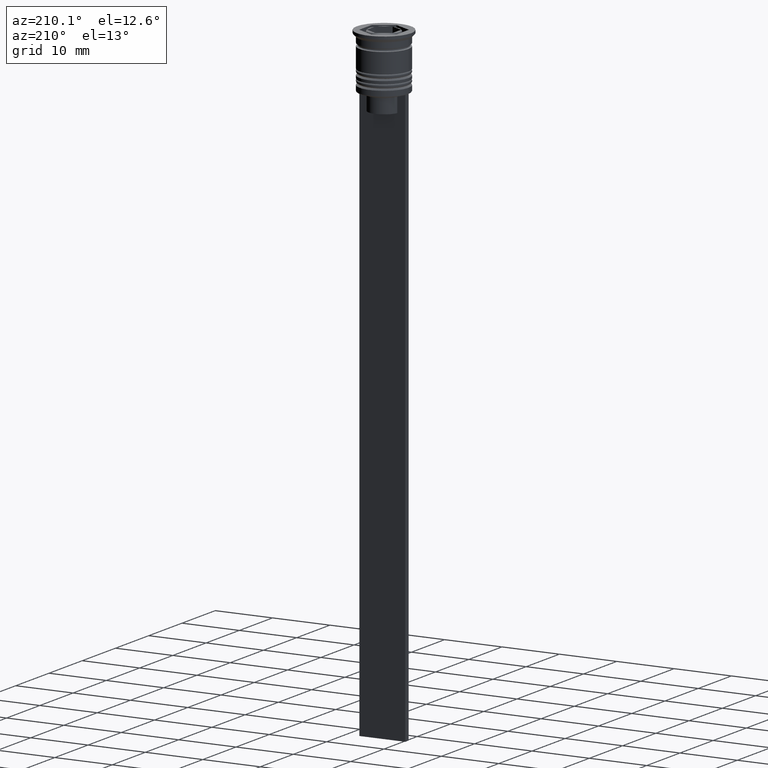
[diagram: clean part render]
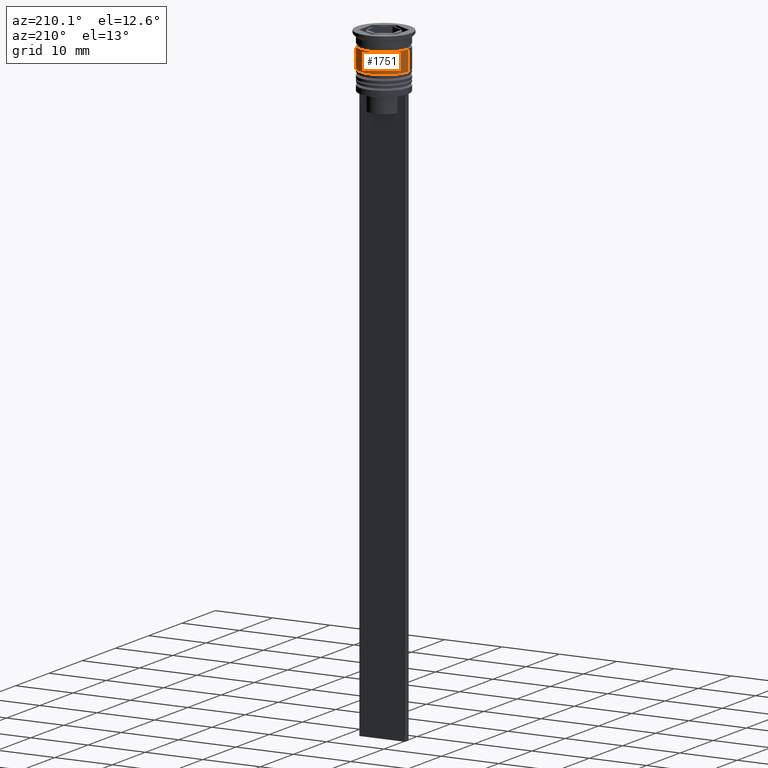
[diagram: same view with one face highlighted and labeled with its STEP entity id]
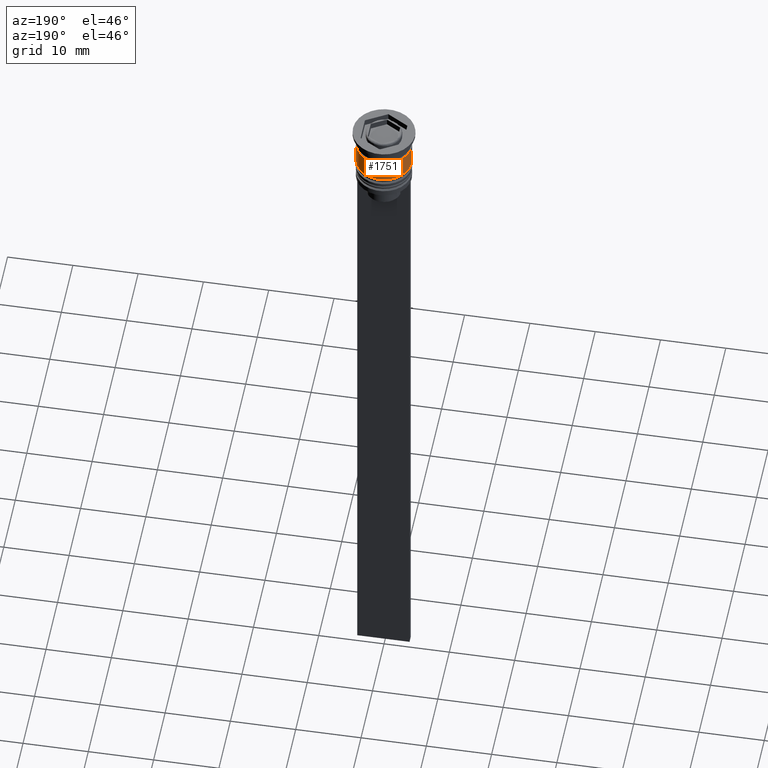
[diagram: same view with one face highlighted and labeled with its STEP entity id]
A machine part, auxiliary view. The second image highlights one B-rep face of the part: STEP entity #1751.
A second angle (auxiliary view) of the same face is appended — the face is thin or edge-on in the first view.
In plain terms, the highlighted cylindrical surface (edge-blend (fillet) strip) has radius 4.25 mm, axis along (-0, -0, 1).
Its self-contained STEP definition (entity closure, byte-faithful):
#83 = DIRECTION ( 'NONE',  ( -0.000000000000000000, -0.000000000000000000, 1.000000000000000000 ) ) ;
#113 = VERTEX_POINT ( 'NONE', #1423 ) ;
#135 = CYLINDRICAL_SURFACE ( 'NONE', #1581, 4.250000000000000000 ) ;
#216 = VERTEX_POINT ( 'NONE', #1642 ) ;
#235 = CARTESIAN_POINT ( 'NONE',  ( -4.250000000000000888, 5.204748896376251685E-16, -6.000000000000000000 ) ) ;
#238 = EDGE_LOOP ( 'NONE', ( #1730, #1717, #1470, #2143 ) ) ;
#371 = VERTEX_POINT ( 'NONE', #235 ) ;
#606 = CARTESIAN_POINT ( 'NONE',  ( 4.250000000000000000, 0.000000000000000000, -2.500000000000000000 ) ) ;
#649 = AXIS2_PLACEMENT_3D ( 'NONE', #2228, #1896, #802 ) ;
#802 = DIRECTION ( 'NONE',  ( 1.000000000000000000, 0.000000000000000000, 0.000000000000000000 ) ) ;
#814 = DIRECTION ( 'NONE',  ( 1.000000000000000000, 0.000000000000000000, 0.000000000000000000 ) ) ;
#956 = VECTOR ( 'NONE', #2094, 1000.000000000000000 ) ;
#1132 = LINE ( 'NONE', #1313, #956 ) ;
#1167 = LINE ( 'NONE', #2092, #2273 ) ;
#1178 = DIRECTION ( 'NONE',  ( -0.000000000000000000, -0.000000000000000000, 1.000000000000000000 ) ) ;
#1250 = EDGE_CURVE ( 'NONE', #216, #1650, #1167, .T. ) ;
#1313 = CARTESIAN_POINT ( 'NONE',  ( -4.250000000000000000, 5.204748896376250699E-16, 0.000000000000000000 ) ) ;
#1385 = DIRECTION ( 'NONE',  ( 1.000000000000000000, 0.000000000000000000, 0.000000000000000000 ) ) ;
#1423 = CARTESIAN_POINT ( 'NONE',  ( -4.250000000000000000, 5.204748896376250699E-16, -2.500000000000000000 ) ) ;
#1470 = ORIENTED_EDGE ( 'NONE', *, *, #1622, .F. ) ;
#1581 = AXIS2_PLACEMENT_3D ( 'NONE', #1753, #1585, #1385 ) ;
#1585 = DIRECTION ( 'NONE',  ( -0.000000000000000000, -0.000000000000000000, 1.000000000000000000 ) ) ;
#1591 = EDGE_CURVE ( 'NONE', #371, #113, #1132, .T. ) ;
#1622 = EDGE_CURVE ( 'NONE', #1650, #113, #1877, .T. ) ;
#1642 = CARTESIAN_POINT ( 'NONE',  ( 4.250000000000000888, 0.000000000000000000, -6.000000000000000000 ) ) ;
#1650 = VERTEX_POINT ( 'NONE', #606 ) ;
#1717 = ORIENTED_EDGE ( 'NONE', *, *, #1591, .T. ) ;
#1730 = ORIENTED_EDGE ( 'NONE', *, *, #1798, .T. ) ;
#1751 = ADVANCED_FACE ( 'NONE', ( #2291 ), #135, .T. ) ;
#1753 = CARTESIAN_POINT ( 'NONE',  ( 0.000000000000000000, 0.000000000000000000, 0.000000000000000000 ) ) ;
#1798 = EDGE_CURVE ( 'NONE', #216, #371, #1965, .T. ) ;
#1877 = CIRCLE ( 'NONE', #649, 4.250000000000000000 ) ;
#1896 = DIRECTION ( 'NONE',  ( -0.000000000000000000, -0.000000000000000000, 1.000000000000000000 ) ) ;
#1965 = CIRCLE ( 'NONE', #2202, 4.250000000000000888 ) ;
#2092 = CARTESIAN_POINT ( 'NONE',  ( 4.250000000000000000, 0.000000000000000000, 0.000000000000000000 ) ) ;
#2094 = DIRECTION ( 'NONE',  ( -0.000000000000000000, -0.000000000000000000, 1.000000000000000000 ) ) ;
#2143 = ORIENTED_EDGE ( 'NONE', *, *, #1250, .F. ) ;
#2202 = AXIS2_PLACEMENT_3D ( 'NONE', #2339, #83, #814 ) ;
#2228 = CARTESIAN_POINT ( 'NONE',  ( 0.000000000000000000, 0.000000000000000000, -2.500000000000000000 ) ) ;
#2273 = VECTOR ( 'NONE', #1178, 1000.000000000000000 ) ;
#2291 = FACE_OUTER_BOUND ( 'NONE', #238, .T. ) ;
#2339 = CARTESIAN_POINT ( 'NONE',  ( 0.000000000000000000, 0.000000000000000000, -6.000000000000000000 ) ) ;